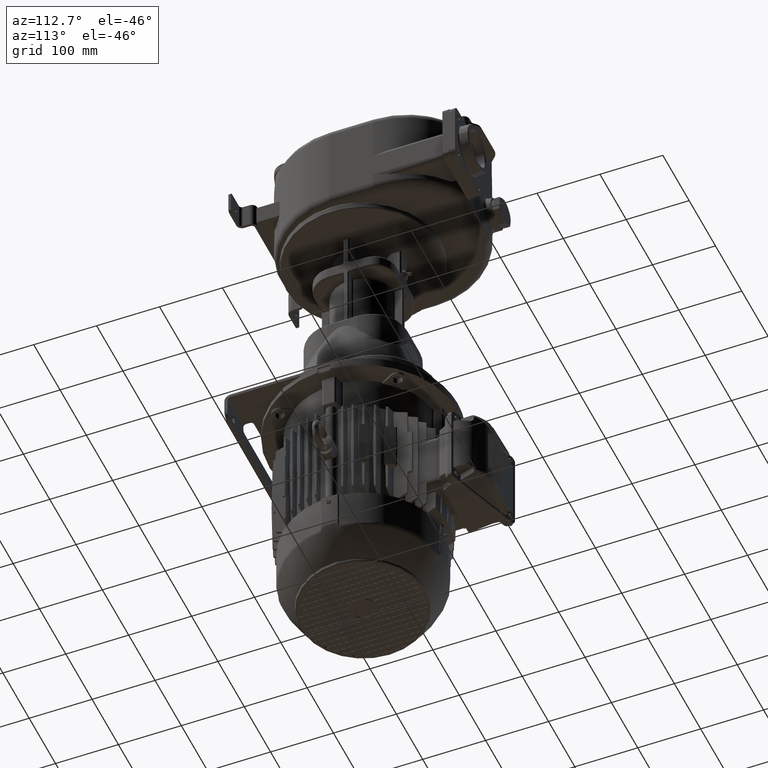
[diagram: clean part render]
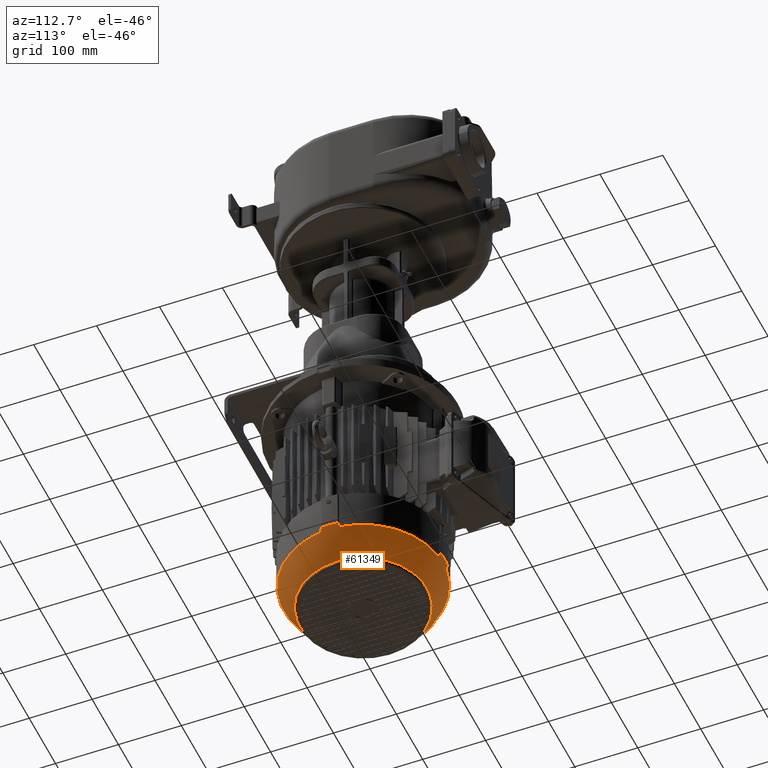
[diagram: same view with one face highlighted and labeled with its STEP entity id]
A machine part, auxiliary view. The second image highlights one B-rep face of the part: STEP entity #61349.
In plain terms, the highlighted spherical surface has radius 134.5 mm.
Its self-contained STEP definition (entity closure, byte-faithful):
#8086=CARTESIAN_POINT('',(-1.282834132325E2,1.178267666692E2,
-7.434111169065E2));
#8087=CARTESIAN_POINT('',(-1.282002467554E2,1.178032779781E2,
-7.436822287057E2));
#8088=CARTESIAN_POINT('',(-1.281156932238E2,1.177736879892E2,
-7.439527179490E2));
#8089=CARTESIAN_POINT('',(-1.280296044668E2,1.177363660336E2,
-7.442224832445E2));
#8101=CARTESIAN_POINT('',(-1.280296044668E2,1.177363660336E2,
-7.442224832445E2));
#8103=CARTESIAN_POINT('',(1.488929890107E1,5.307848742190E0,-7.506978132399E2));
#8104=CARTESIAN_POINT('',(1.475797575324E1,5.143682761432E0,-7.502872636902E2));
#8105=CARTESIAN_POINT('',(1.451431108713E1,4.837981104163E0,-7.495084317604E2));
#8106=CARTESIAN_POINT('',(1.420756427069E1,4.445937575900E0,-7.484765120884E2));
#8107=CARTESIAN_POINT('',(1.395436023655E1,4.108421879081E0,-7.475598535176E2));
#8108=CARTESIAN_POINT('',(1.374997824866E1,3.820240010993E0,-7.467539341767E2));
#8109=CARTESIAN_POINT('',(1.358631401472E1,3.571649369312E0,-7.460394914938E2));
#8110=CARTESIAN_POINT('',(1.345382668788E1,3.351181483562E0,-7.453893116309E2));
#8111=CARTESIAN_POINT('',(1.334646183639E1,3.151497309784E0,-7.447856018559E2));
#8112=CARTESIAN_POINT('',(1.328900516749E1,3.028918068537E0,-7.444058678082E2));
#8113=CARTESIAN_POINT('',(1.326363396636E1,2.970395533190E0,-7.442224832445E2));
#8115=CARTESIAN_POINT('',(4.132121576846E-13,1.31E2,-7.506978132152E2));
#8116=DIRECTION('',(0.E0,0.E0,-1.E0));
#8117=DIRECTION('',(9.930567840818E-1,-1.176359791440E-1,0.E0));
#8118=AXIS2_PLACEMENT_3D('',#8115,#8116,#8117);
#8120=CARTESIAN_POINT('',(1.280296044668E2,1.177363660336E2,-7.442224832445E2));
#8121=CARTESIAN_POINT('',(1.279813170112E2,1.177154320340E2,-7.443737954515E2));
#8122=CARTESIAN_POINT('',(1.278801050989E2,1.176686158743E2,-7.446879693506E2));
#8123=CARTESIAN_POINT('',(1.277151793851E2,1.175826955099E2,-7.451896229194E2));
#8124=CARTESIAN_POINT('',(1.275327307182E2,1.174775384042E2,-7.457330497951E2));
#8125=CARTESIAN_POINT('',(1.273269363894E2,1.173481157717E2,-7.463326205180E2));
#8126=CARTESIAN_POINT('',(1.270894901881E2,1.171870991755E2,-7.470082239755E2));
#8127=CARTESIAN_POINT('',(1.268139180149E2,1.169881589472E2,-7.477725362874E2));
#8128=CARTESIAN_POINT('',(1.264955331741E2,1.167470593127E2,-7.486318863222E2));
#8129=CARTESIAN_POINT('',(1.261281420352E2,1.164586476620E2,-7.495951826287E2));
#8130=CARTESIAN_POINT('',(1.258441381559E2,1.162322682235E2,-7.503177169736E2));
#8131=CARTESIAN_POINT('',(1.256921512578E2,1.161107010989E2,-7.506978132399E2));
#8133=CARTESIAN_POINT('',(4.096550692359E-13,1.31E2,-7.434111169065E2));
#8134=DIRECTION('',(0.E0,0.E0,-1.E0));
#8135=DIRECTION('',(9.947688696105E-1,1.021513389720E-1,0.E0));
#8136=AXIS2_PLACEMENT_3D('',#8133,#8134,#8135);
#8138=CARTESIAN_POINT('',(1.256921512578E2,1.458892989011E2,-7.506978132399E2));
#8139=CARTESIAN_POINT('',(1.258441381540E2,1.457677317780E2,-7.503177169784E2));
#8140=CARTESIAN_POINT('',(1.261281420366E2,1.455413523371E2,-7.495951826247E2));
#8141=CARTESIAN_POINT('',(1.264955331602E2,1.452529406977E2,-7.486318863600E2));
#8142=CARTESIAN_POINT('',(1.268139180870E2,1.450118409981E2,-7.477725360931E2));
#8143=CARTESIAN_POINT('',(1.270894903753E2,1.448129006906E2,-7.470082234535E2));
#8144=CARTESIAN_POINT('',(1.273269367100E2,1.446518840173E2,-7.463326195965E2));
#8145=CARTESIAN_POINT('',(1.275327309686E2,1.445224614460E2,-7.457330490557E2));
#8146=CARTESIAN_POINT('',(1.277151795382E2,1.444173044070E2,-7.451896224571E2));
#8147=CARTESIAN_POINT('',(1.278801051620E2,1.443313840941E2,-7.446879691558E2));
#8148=CARTESIAN_POINT('',(1.279813170303E2,1.442845679580E2,-7.443737953916E2));
#8149=CARTESIAN_POINT('',(1.280296044668E2,1.442636339664E2,-7.442224832445E2));
#8151=CARTESIAN_POINT('',(4.132121576846E-13,1.31E2,-7.506978132152E2));
#8152=DIRECTION('',(0.E0,0.E0,-1.E0));
#8153=DIRECTION('',(1.176359791440E-1,9.930567840818E-1,0.E0));
#8154=AXIS2_PLACEMENT_3D('',#8151,#8152,#8153);
#8156=CARTESIAN_POINT('',(1.326363396636E1,2.590296044668E2,-7.442224832445E2));
#8157=CARTESIAN_POINT('',(1.328900516250E1,2.589710819423E2,-7.444058677742E2));
#8158=CARTESIAN_POINT('',(1.334646181848E1,2.588485027303E2,-7.447856017321E2));
#8159=CARTESIAN_POINT('',(1.345382665231E1,2.586488185823E2,-7.453893114323E2));
#8160=CARTESIAN_POINT('',(1.358631389158E1,2.584283508298E2,-7.460394909109E2));
#8161=CARTESIAN_POINT('',(1.374997807377E1,2.581797602424E2,-7.467539334601E2));
#8162=CARTESIAN_POINT('',(1.395436013275E1,2.578915782604E2,-7.475598531365E2));
#8163=CARTESIAN_POINT('',(1.420756424150E1,2.575540624599E2,-7.484765119969E2));
#8164=CARTESIAN_POINT('',(1.451431117817E1,2.571620187815E2,-7.495084320576E2));
#8165=CARTESIAN_POINT('',(1.475797579613E1,2.568563171825E2,-7.502872638309E2));
#8166=CARTESIAN_POINT('',(1.488929890107E1,2.566921512578E2,-7.506978132399E2));
#8168=CARTESIAN_POINT('',(4.096550692359E-13,1.31E2,-7.434111169065E2));
#8169=DIRECTION('',(0.E0,0.E0,1.E0));
#8170=DIRECTION('',(1.021513389720E-1,9.947688696105E-1,0.E0));
#8171=AXIS2_PLACEMENT_3D('',#8168,#8169,#8170);
#8173=CARTESIAN_POINT('',(-1.488929890107E1,2.566921512578E2,
-7.506978132399E2));
#8174=CARTESIAN_POINT('',(-1.475797575306E1,2.568563172387E2,
-7.502872636899E2));
#8175=CARTESIAN_POINT('',(-1.451431108670E1,2.571620188961E2,
-7.495084317598E2));
#8176=CARTESIAN_POINT('',(-1.420756427032E1,2.575540624244E2,
-7.484765120875E2));
#8177=CARTESIAN_POINT('',(-1.395436023629E1,2.578915781213E2,
-7.475598535166E2));
#8178=CARTESIAN_POINT('',(-1.374997824841E1,2.581797599894E2,
-7.467539341755E2));
#8179=CARTESIAN_POINT('',(-1.358631401446E1,2.584283506311E2,
-7.460394914924E2));
#8180=CARTESIAN_POINT('',(-1.345382668768E1,2.586488185168E2,
-7.453893116297E2));
#8181=CARTESIAN_POINT('',(-1.334646183629E1,2.588485026904E2,
-7.447856018553E2));
#8182=CARTESIAN_POINT('',(-1.328900516745E1,2.589710819315E2,
-7.444058678080E2));
#8183=CARTESIAN_POINT('',(-1.326363396636E1,2.590296044668E2,
-7.442224832445E2));
#8185=CARTESIAN_POINT('',(4.132121576846E-13,1.31E2,-7.506978132152E2));
#8186=DIRECTION('',(0.E0,0.E0,-1.E0));
#8187=DIRECTION('',(-9.930567840818E-1,1.176359791440E-1,0.E0));
#8188=AXIS2_PLACEMENT_3D('',#8185,#8186,#8187);
#8190=CARTESIAN_POINT('',(-1.280296044668E2,1.442636339664E2,
-7.442224832445E2));
#8191=CARTESIAN_POINT('',(-1.279813170112E2,1.442845679660E2,
-7.443737954515E2));
#8192=CARTESIAN_POINT('',(-1.278801050989E2,1.443313841257E2,
-7.446879693506E2));
#8193=CARTESIAN_POINT('',(-1.277151793852E2,1.444173044900E2,
-7.451896229194E2));
#8194=CARTESIAN_POINT('',(-1.275327307183E2,1.445224615958E2,
-7.457330497950E2));
#8195=CARTESIAN_POINT('',(-1.273269363894E2,1.446518842283E2,
-7.463326205180E2));
#8196=CARTESIAN_POINT('',(-1.270894901881E2,1.448129008245E2,
-7.470082239754E2));
#8197=CARTESIAN_POINT('',(-1.268139180149E2,1.450118410527E2,
-7.477725362873E2));
#8198=CARTESIAN_POINT('',(-1.264955331741E2,1.452529406873E2,
-7.486318863222E2));
#8199=CARTESIAN_POINT('',(-1.261281420353E2,1.455413523380E2,
-7.495951826286E2));
#8200=CARTESIAN_POINT('',(-1.258441381559E2,1.457677317765E2,
-7.503177169736E2));
#8201=CARTESIAN_POINT('',(-1.256921512578E2,1.458892989011E2,
-7.506978132399E2));
#8203=CARTESIAN_POINT('',(4.096550692359E-13,1.31E2,-7.434111169065E2));
#8204=DIRECTION('',(0.E0,0.E0,-1.E0));
#8205=DIRECTION('',(-9.947688696105E-1,-1.021513389720E-1,0.E0));
#8206=AXIS2_PLACEMENT_3D('',#8203,#8204,#8205);
#8208=CARTESIAN_POINT('',(-1.256921512578E2,1.161107010989E2,
-7.506978132399E2));
#8209=CARTESIAN_POINT('',(-1.258441381540E2,1.162322682222E2,
-7.503177169782E2));
#8210=CARTESIAN_POINT('',(-1.261281420367E2,1.164586476631E2,
-7.495951826244E2));
#8211=CARTESIAN_POINT('',(-1.264955331603E2,1.167470593025E2,
-7.486318863596E2));
#8212=CARTESIAN_POINT('',(-1.268139180871E2,1.169881590020E2,
-7.477725360927E2));
#8213=CARTESIAN_POINT('',(-1.270894903754E2,1.171870993095E2,
-7.470082234531E2));
#8214=CARTESIAN_POINT('',(-1.273269367101E2,1.173481159828E2,
-7.463326195961E2));
#8215=CARTESIAN_POINT('',(-1.275327309687E2,1.174775385541E2,
-7.457330490552E2));
#8216=CARTESIAN_POINT('',(-1.277151795383E2,1.175826955930E2,
-7.451896224567E2));
#8217=CARTESIAN_POINT('',(-1.278801051621E2,1.176686159059E2,
-7.446879691555E2));
#8218=CARTESIAN_POINT('',(-1.279813170303E2,1.177154320420E2,
-7.443737953915E2));
#8219=CARTESIAN_POINT('',(-1.280296044668E2,1.177363660336E2,
-7.442224832445E2));
#8221=CARTESIAN_POINT('',(4.132121576846E-13,1.31E2,-7.506978132152E2));
#8222=DIRECTION('',(0.E0,0.E0,-1.E0));
#8223=DIRECTION('',(-1.176359791440E-1,-9.930567840818E-1,0.E0));
#8224=AXIS2_PLACEMENT_3D('',#8221,#8222,#8223);
#8226=CARTESIAN_POINT('',(-1.326363396636E1,2.970395533190E0,
-7.442224832445E2));
#8227=CARTESIAN_POINT('',(-1.328900516251E1,3.028918057689E0,
-7.444058677743E2));
#8228=CARTESIAN_POINT('',(-1.334646181851E1,3.151497269755E0,
-7.447856017323E2));
#8229=CARTESIAN_POINT('',(-1.345382665238E1,3.351181417884E0,
-7.453893114327E2));
#8230=CARTESIAN_POINT('',(-1.358631389168E1,3.571649170332E0,
-7.460394909114E2));
#8231=CARTESIAN_POINT('',(-1.374997807386E1,3.820239757751E0,
-7.467539334605E2));
#8232=CARTESIAN_POINT('',(-1.395436013284E1,4.108421739715E0,
-7.475598531368E2));
#8233=CARTESIAN_POINT('',(-1.420756424164E1,4.445937540214E0,
-7.484765119973E2));
#8234=CARTESIAN_POINT('',(-1.451431117832E1,4.837981218568E0,
-7.495084320578E2));
#8235=CARTESIAN_POINT('',(-1.475797579619E1,5.143682817485E0,
-7.502872638309E2));
#8236=CARTESIAN_POINT('',(-1.488929890107E1,5.307848742191E0,
-7.506978132399E2));
#8238=CARTESIAN_POINT('',(4.342265592157E-13,1.31E2,-7.937458184241E2));
#8239=DIRECTION('',(0.E0,0.E0,-1.E0));
#8240=DIRECTION('',(-1.E0,0.E0,0.E0));
#8241=AXIS2_PLACEMENT_3D('',#8238,#8239,#8240);
#8243=CARTESIAN_POINT('',(4.342265592157E-13,1.31E2,-7.937458184241E2));
#8244=DIRECTION('',(0.E0,0.E0,-1.E0));
#8245=DIRECTION('',(1.E0,0.E0,0.E0));
#8246=AXIS2_PLACEMENT_3D('',#8243,#8244,#8245);
#8248=CARTESIAN_POINT('',(4.096550692359E-13,1.31E2,-7.434111169065E2));
#8249=DIRECTION('',(0.E0,0.E0,-1.E0));
#8250=DIRECTION('',(1.021513389720E-1,-9.947688696105E-1,0.E0));
#8251=AXIS2_PLACEMENT_3D('',#8248,#8249,#8250);
#8280=CARTESIAN_POINT('',(1.317323333080E1,2.716586767507E0,-7.434111169065E2));
#8578=CARTESIAN_POINT('',(1.317323333080E1,2.716586767507E0,-7.434111169065E2));
#8579=CARTESIAN_POINT('',(1.319672202193E1,2.799753244628E0,-7.436822287057E2));
#8580=CARTESIAN_POINT('',(1.322631201081E1,2.884306776222E0,-7.439527179490E2));
#8581=CARTESIAN_POINT('',(1.326363396636E1,2.970395533190E0,-7.442224832445E2));
#8593=CARTESIAN_POINT('',(1.326363396636E1,2.970395533190E0,-7.442224832445E2));
#8619=CARTESIAN_POINT('',(1.256921512578E2,1.161107010989E2,-7.506978132399E2));
#8637=CARTESIAN_POINT('',(1.488929890107E1,5.307848742190E0,-7.506978132399E2));
#8793=CARTESIAN_POINT('',(1.282834132325E2,1.441732333308E2,-7.434111169065E2));
#8794=CARTESIAN_POINT('',(1.282002467554E2,1.441967220219E2,-7.436822287057E2));
#8795=CARTESIAN_POINT('',(1.281156932238E2,1.442263120108E2,-7.439527179490E2));
#8796=CARTESIAN_POINT('',(1.280296044668E2,1.442636339664E2,-7.442224832445E2));
#8852=CARTESIAN_POINT('',(1.256921512578E2,1.458892989011E2,-7.506978132399E2));
#8881=CARTESIAN_POINT('',(1.317323333080E1,2.592834132325E2,-7.434111169065E2));
#9050=CARTESIAN_POINT('',(-1.317323333080E1,2.592834132325E2,
-7.434111169065E2));
#9051=CARTESIAN_POINT('',(-1.319672202193E1,2.592002467554E2,
-7.436822287057E2));
#9052=CARTESIAN_POINT('',(-1.322631201081E1,2.591156932238E2,
-7.439527179490E2));
#9053=CARTESIAN_POINT('',(-1.326363396636E1,2.590296044668E2,
-7.442224832445E2));
#9059=CARTESIAN_POINT('',(-1.317323333080E1,2.592834132325E2,
-7.434111169065E2));
#9065=CARTESIAN_POINT('',(-1.326363396636E1,2.590296044668E2,
-7.442224832445E2));
#9079=CARTESIAN_POINT('',(-1.488929890107E1,2.566921512578E2,
-7.506978132399E2));
#9101=CARTESIAN_POINT('',(-1.256921512578E2,1.458892989011E2,
-7.506978132399E2));
#9212=CARTESIAN_POINT('',(-1.282834132325E2,1.178267666692E2,
-7.434111169065E2));
#9230=CARTESIAN_POINT('',(-1.282834132325E2,1.441732333308E2,
-7.434111169065E2));
#9240=CARTESIAN_POINT('',(-1.280296044668E2,1.442636339664E2,
-7.442224832445E2));
#9241=CARTESIAN_POINT('',(-1.281156932238E2,1.442263120108E2,
-7.439527179490E2));
#9242=CARTESIAN_POINT('',(-1.282002467554E2,1.441967220219E2,
-7.436822287057E2));
#9243=CARTESIAN_POINT('',(-1.282834132325E2,1.441732333308E2,
-7.434111169065E2));
#9249=CARTESIAN_POINT('',(-1.280296044668E2,1.442636339664E2,
-7.442224832445E2));
#9740=CARTESIAN_POINT('',(1.326363396636E1,2.590296044668E2,-7.442224832445E2));
#9741=CARTESIAN_POINT('',(1.322631201081E1,2.591156932238E2,-7.439527179490E2));
#9742=CARTESIAN_POINT('',(1.319672202193E1,2.592002467554E2,-7.436822287057E2));
#9743=CARTESIAN_POINT('',(1.317323333080E1,2.592834132325E2,-7.434111169065E2));
#9749=CARTESIAN_POINT('',(1.326363396636E1,2.590296044668E2,-7.442224832445E2));
#9756=CARTESIAN_POINT('',(1.488929890107E1,2.566921512578E2,-7.506978132399E2));
#9795=CARTESIAN_POINT('',(1.282834132325E2,1.441732333308E2,-7.434111169065E2));
#9813=CARTESIAN_POINT('',(1.282834132325E2,1.178267666692E2,-7.434111169065E2));
#10277=CARTESIAN_POINT('',(1.280296044668E2,1.177363660336E2,
-7.442224832445E2));
#10278=CARTESIAN_POINT('',(1.281156932238E2,1.177736879892E2,
-7.439527179490E2));
#10279=CARTESIAN_POINT('',(1.282002467554E2,1.178032779781E2,
-7.436822287057E2));
#10280=CARTESIAN_POINT('',(1.282834132325E2,1.178267666692E2,
-7.434111169065E2));
#10648=CARTESIAN_POINT('',(-1.326363396636E1,2.970395533190E0,
-7.442224832445E2));
#10649=CARTESIAN_POINT('',(-1.322631201081E1,2.884306776222E0,
-7.439527179490E2));
#10650=CARTESIAN_POINT('',(-1.319672202193E1,2.799753244628E0,
-7.436822287057E2));
#10651=CARTESIAN_POINT('',(-1.317323333080E1,2.716586767508E0,
-7.434111169065E2));
#10683=CARTESIAN_POINT('',(-1.488929890107E1,5.307848742191E0,
-7.506978132399E2));
#10701=CARTESIAN_POINT('',(-1.256921512578E2,1.161107010989E2,
-7.506978132399E2));
#48459=VERTEX_POINT('',#10648);
#48460=VERTEX_POINT('',#10651);
#49737=VERTEX_POINT('',#9065);
#49742=VERTEX_POINT('',#9079);
#50074=VERTEX_POINT('',#9059);
#50398=VERTEX_POINT('',#9756);
#50407=VERTEX_POINT('',#8881);
#50412=VERTEX_POINT('',#9749);
#50946=VERTEX_POINT('',#10683);
#50948=VERTEX_POINT('',#9230);
#50950=VERTEX_POINT('',#9212);
#50952=VERTEX_POINT('',#8280);
#50953=VERTEX_POINT('',#9795);
#50959=VERTEX_POINT('',#8637);
#50968=VERTEX_POINT('',#9813);
#50969=VERTEX_POINT('',#8852);
#50971=VERTEX_POINT('',#9249);
#50972=VERTEX_POINT('',#8619);
#50977=VERTEX_POINT('',#9101);
#50982=VERTEX_POINT('',#10701);
#51028=VERTEX_POINT('',#8593);
#51047=VERTEX_POINT('',#8101);
#51127=CARTESIAN_POINT('',(1.012418181818E2,1.31E2,-7.937458184241E2));
#51129=VERTEX_POINT('',#51127);
#51140=VERTEX_POINT('',#8120);
#51141=VERTEX_POINT('',#8149);
#51167=CARTESIAN_POINT('',(-1.012418181818E2,1.31E2,-7.937458184241E2));
#51168=VERTEX_POINT('',#51167);
#61290=CARTESIAN_POINT('',(3.910019017247E-13,1.31E2,-7.052001E2));
#61291=DIRECTION('',(1.E0,0.E0,0.E0));
#61292=DIRECTION('',(0.E0,1.E0,0.E0));
#61293=AXIS2_PLACEMENT_3D('',#61290,#61291,#61292);
#61294=SPHERICAL_SURFACE('',#61293,1.345E2);
#61296=ORIENTED_EDGE('',*,*,#61295,.F.);
#61298=ORIENTED_EDGE('',*,*,#61297,.T.);
#61300=ORIENTED_EDGE('',*,*,#61299,.F.);
#61302=ORIENTED_EDGE('',*,*,#61301,.F.);
#61304=ORIENTED_EDGE('',*,*,#61303,.F.);
#61306=ORIENTED_EDGE('',*,*,#61305,.T.);
#61308=ORIENTED_EDGE('',*,*,#61307,.F.);
#61310=ORIENTED_EDGE('',*,*,#61309,.T.);
#61312=ORIENTED_EDGE('',*,*,#61311,.F.);
#61314=ORIENTED_EDGE('',*,*,#61313,.F.);
#61316=ORIENTED_EDGE('',*,*,#61315,.F.);
#61318=ORIENTED_EDGE('',*,*,#61317,.T.);
#61320=ORIENTED_EDGE('',*,*,#61319,.T.);
#61322=ORIENTED_EDGE('',*,*,#61321,.T.);
#61324=ORIENTED_EDGE('',*,*,#61323,.F.);
#61326=ORIENTED_EDGE('',*,*,#61325,.F.);
#61328=ORIENTED_EDGE('',*,*,#61327,.F.);
#61330=ORIENTED_EDGE('',*,*,#61329,.T.);
#61332=ORIENTED_EDGE('',*,*,#61331,.F.);
#61333=ORIENTED_EDGE('',*,*,#61248,.T.);
#61334=ORIENTED_EDGE('',*,*,#61282,.F.);
#61336=ORIENTED_EDGE('',*,*,#61335,.F.);
#61338=ORIENTED_EDGE('',*,*,#61337,.F.);
#61340=ORIENTED_EDGE('',*,*,#61339,.T.);
#61341=EDGE_LOOP('',(#61296,#61298,#61300,#61302,#61304,#61306,#61308,#61310,
#61312,#61314,#61316,#61318,#61320,#61322,#61324,#61326,#61328,#61330,#61332,
#61333,#61334,#61336,#61338,#61340));
#61342=FACE_OUTER_BOUND('',#61341,.F.);
#61344=ORIENTED_EDGE('',*,*,#61343,.T.);
#61346=ORIENTED_EDGE('',*,*,#61345,.T.);
#61347=EDGE_LOOP('',(#61344,#61346));
#61348=FACE_BOUND('',#61347,.F.);
#61349=ADVANCED_FACE('',(#61342,#61348),#61294,.T.);
#8090=B_SPLINE_CURVE_WITH_KNOTS('',3,(#8086,#8087,#8088,#8089),.UNSPECIFIED.,
.F.,.F.,(4,4),(0.E0,1.E0),.UNSPECIFIED.);
#8114=B_SPLINE_CURVE_WITH_KNOTS('',3,(#8103,#8104,#8105,#8106,#8107,#8108,#8109,
#8110,#8111,#8112,#8113),.UNSPECIFIED.,.F.,.F.,(4,1,1,1,1,1,1,1,4),(0.E0,
1.25E-1,2.5E-1,3.75E-1,5.E-1,6.25E-1,7.5E-1,8.75E-1,1.E0),.UNSPECIFIED.);
#8119=CIRCLE('',#8118,1.265709606987E2);
#8132=B_SPLINE_CURVE_WITH_KNOTS('',3,(#8120,#8121,#8122,#8123,#8124,#8125,#8126,
#8127,#8128,#8129,#8130,#8131),.UNSPECIFIED.,.F.,.F.,(4,1,1,1,1,1,1,1,1,4),
(0.E0,1.111111111111E-1,2.222222222222E-1,3.333333333333E-1,4.444444444444E-1,
5.555555555556E-1,6.666666666667E-1,7.777777777778E-1,8.888888888889E-1,1.E0),
.UNSPECIFIED.);
#8137=CIRCLE('',#8136,1.289580093944E2);
#8150=B_SPLINE_CURVE_WITH_KNOTS('',3,(#8138,#8139,#8140,#8141,#8142,#8143,#8144,
#8145,#8146,#8147,#8148,#8149),.UNSPECIFIED.,.F.,.F.,(4,1,1,1,1,1,1,1,1,4),
(0.E0,1.111111111111E-1,2.222222222222E-1,3.333333333333E-1,4.444444444444E-1,
5.555555555556E-1,6.666666666667E-1,7.777777777778E-1,8.888888888889E-1,1.E0),
.UNSPECIFIED.);
#8155=CIRCLE('',#8154,1.265709606987E2);
#8167=B_SPLINE_CURVE_WITH_KNOTS('',3,(#8156,#8157,#8158,#8159,#8160,#8161,#8162,
#8163,#8164,#8165,#8166),.UNSPECIFIED.,.F.,.F.,(4,1,1,1,1,1,1,1,4),(0.E0,
1.25E-1,2.5E-1,3.75E-1,5.E-1,6.25E-1,7.5E-1,8.75E-1,1.E0),.UNSPECIFIED.);
#8172=CIRCLE('',#8171,1.289580093944E2);
#8184=B_SPLINE_CURVE_WITH_KNOTS('',3,(#8173,#8174,#8175,#8176,#8177,#8178,#8179,
#8180,#8181,#8182,#8183),.UNSPECIFIED.,.F.,.F.,(4,1,1,1,1,1,1,1,4),(0.E0,
1.25E-1,2.5E-1,3.75E-1,5.E-1,6.25E-1,7.5E-1,8.75E-1,1.E0),.UNSPECIFIED.);
#8189=CIRCLE('',#8188,1.265709606987E2);
#8202=B_SPLINE_CURVE_WITH_KNOTS('',3,(#8190,#8191,#8192,#8193,#8194,#8195,#8196,
#8197,#8198,#8199,#8200,#8201),.UNSPECIFIED.,.F.,.F.,(4,1,1,1,1,1,1,1,1,4),
(0.E0,1.111111111111E-1,2.222222222222E-1,3.333333333333E-1,4.444444444444E-1,
5.555555555556E-1,6.666666666667E-1,7.777777777778E-1,8.888888888889E-1,1.E0),
.UNSPECIFIED.);
#8207=CIRCLE('',#8206,1.289580093944E2);
#8220=B_SPLINE_CURVE_WITH_KNOTS('',3,(#8208,#8209,#8210,#8211,#8212,#8213,#8214,
#8215,#8216,#8217,#8218,#8219),.UNSPECIFIED.,.F.,.F.,(4,1,1,1,1,1,1,1,1,4),
(0.E0,1.111111111111E-1,2.222222222222E-1,3.333333333333E-1,4.444444444444E-1,
5.555555555556E-1,6.666666666667E-1,7.777777777778E-1,8.888888888889E-1,1.E0),
.UNSPECIFIED.);
#8225=CIRCLE('',#8224,1.265709606987E2);
#8237=B_SPLINE_CURVE_WITH_KNOTS('',3,(#8226,#8227,#8228,#8229,#8230,#8231,#8232,
#8233,#8234,#8235,#8236),.UNSPECIFIED.,.F.,.F.,(4,1,1,1,1,1,1,1,4),(0.E0,
1.25E-1,2.5E-1,3.75E-1,5.E-1,6.25E-1,7.5E-1,8.75E-1,1.E0),.UNSPECIFIED.);
#8242=CIRCLE('',#8241,1.012418181818E2);
#8247=CIRCLE('',#8246,1.012418181818E2);
#8252=CIRCLE('',#8251,1.289580093944E2);
#8582=B_SPLINE_CURVE_WITH_KNOTS('',3,(#8578,#8579,#8580,#8581),.UNSPECIFIED.,
.F.,.F.,(4,4),(0.E0,1.E0),.UNSPECIFIED.);
#8797=B_SPLINE_CURVE_WITH_KNOTS('',3,(#8793,#8794,#8795,#8796),.UNSPECIFIED.,
.F.,.F.,(4,4),(0.E0,1.E0),.UNSPECIFIED.);
#9054=B_SPLINE_CURVE_WITH_KNOTS('',3,(#9050,#9051,#9052,#9053),.UNSPECIFIED.,
.F.,.F.,(4,4),(0.E0,1.E0),.UNSPECIFIED.);
#9244=B_SPLINE_CURVE_WITH_KNOTS('',3,(#9240,#9241,#9242,#9243),.UNSPECIFIED.,
.F.,.F.,(4,4),(0.E0,1.E0),.UNSPECIFIED.);
#9744=B_SPLINE_CURVE_WITH_KNOTS('',3,(#9740,#9741,#9742,#9743),.UNSPECIFIED.,
.F.,.F.,(4,4),(0.E0,1.E0),.UNSPECIFIED.);
#10281=B_SPLINE_CURVE_WITH_KNOTS('',3,(#10277,#10278,#10279,#10280),
.UNSPECIFIED.,.F.,.F.,(4,4),(0.E0,1.E0),.UNSPECIFIED.);
#10652=B_SPLINE_CURVE_WITH_KNOTS('',3,(#10648,#10649,#10650,#10651),
.UNSPECIFIED.,.F.,.F.,(4,4),(0.E0,1.E0),.UNSPECIFIED.);
#61248=EDGE_CURVE('',#50950,#51047,#8090,.T.);
#61282=EDGE_CURVE('',#50982,#51047,#8220,.T.);
#61295=EDGE_CURVE('',#50952,#48460,#8252,.T.);
#61297=EDGE_CURVE('',#50952,#51028,#8582,.T.);
#61299=EDGE_CURVE('',#50959,#51028,#8114,.T.);
#61301=EDGE_CURVE('',#50972,#50959,#8119,.T.);
#61303=EDGE_CURVE('',#51140,#50972,#8132,.T.);
#61305=EDGE_CURVE('',#51140,#50968,#10281,.T.);
#61307=EDGE_CURVE('',#50953,#50968,#8137,.T.);
#61309=EDGE_CURVE('',#50953,#51141,#8797,.T.);
#61311=EDGE_CURVE('',#50969,#51141,#8150,.T.);
#61313=EDGE_CURVE('',#50398,#50969,#8155,.T.);
#61315=EDGE_CURVE('',#50412,#50398,#8167,.T.);
#61317=EDGE_CURVE('',#50412,#50407,#9744,.T.);
#61319=EDGE_CURVE('',#50407,#50074,#8172,.T.);
#61321=EDGE_CURVE('',#50074,#49737,#9054,.T.);
#61323=EDGE_CURVE('',#49742,#49737,#8184,.T.);
#61325=EDGE_CURVE('',#50977,#49742,#8189,.T.);
#61327=EDGE_CURVE('',#50971,#50977,#8202,.T.);
#61329=EDGE_CURVE('',#50971,#50948,#9244,.T.);
#61331=EDGE_CURVE('',#50950,#50948,#8207,.T.);
#61335=EDGE_CURVE('',#50946,#50982,#8225,.T.);
#61337=EDGE_CURVE('',#48459,#50946,#8237,.T.);
#61339=EDGE_CURVE('',#48459,#48460,#10652,.T.);
#61343=EDGE_CURVE('',#51168,#51129,#8242,.T.);
#61345=EDGE_CURVE('',#51129,#51168,#8247,.T.);